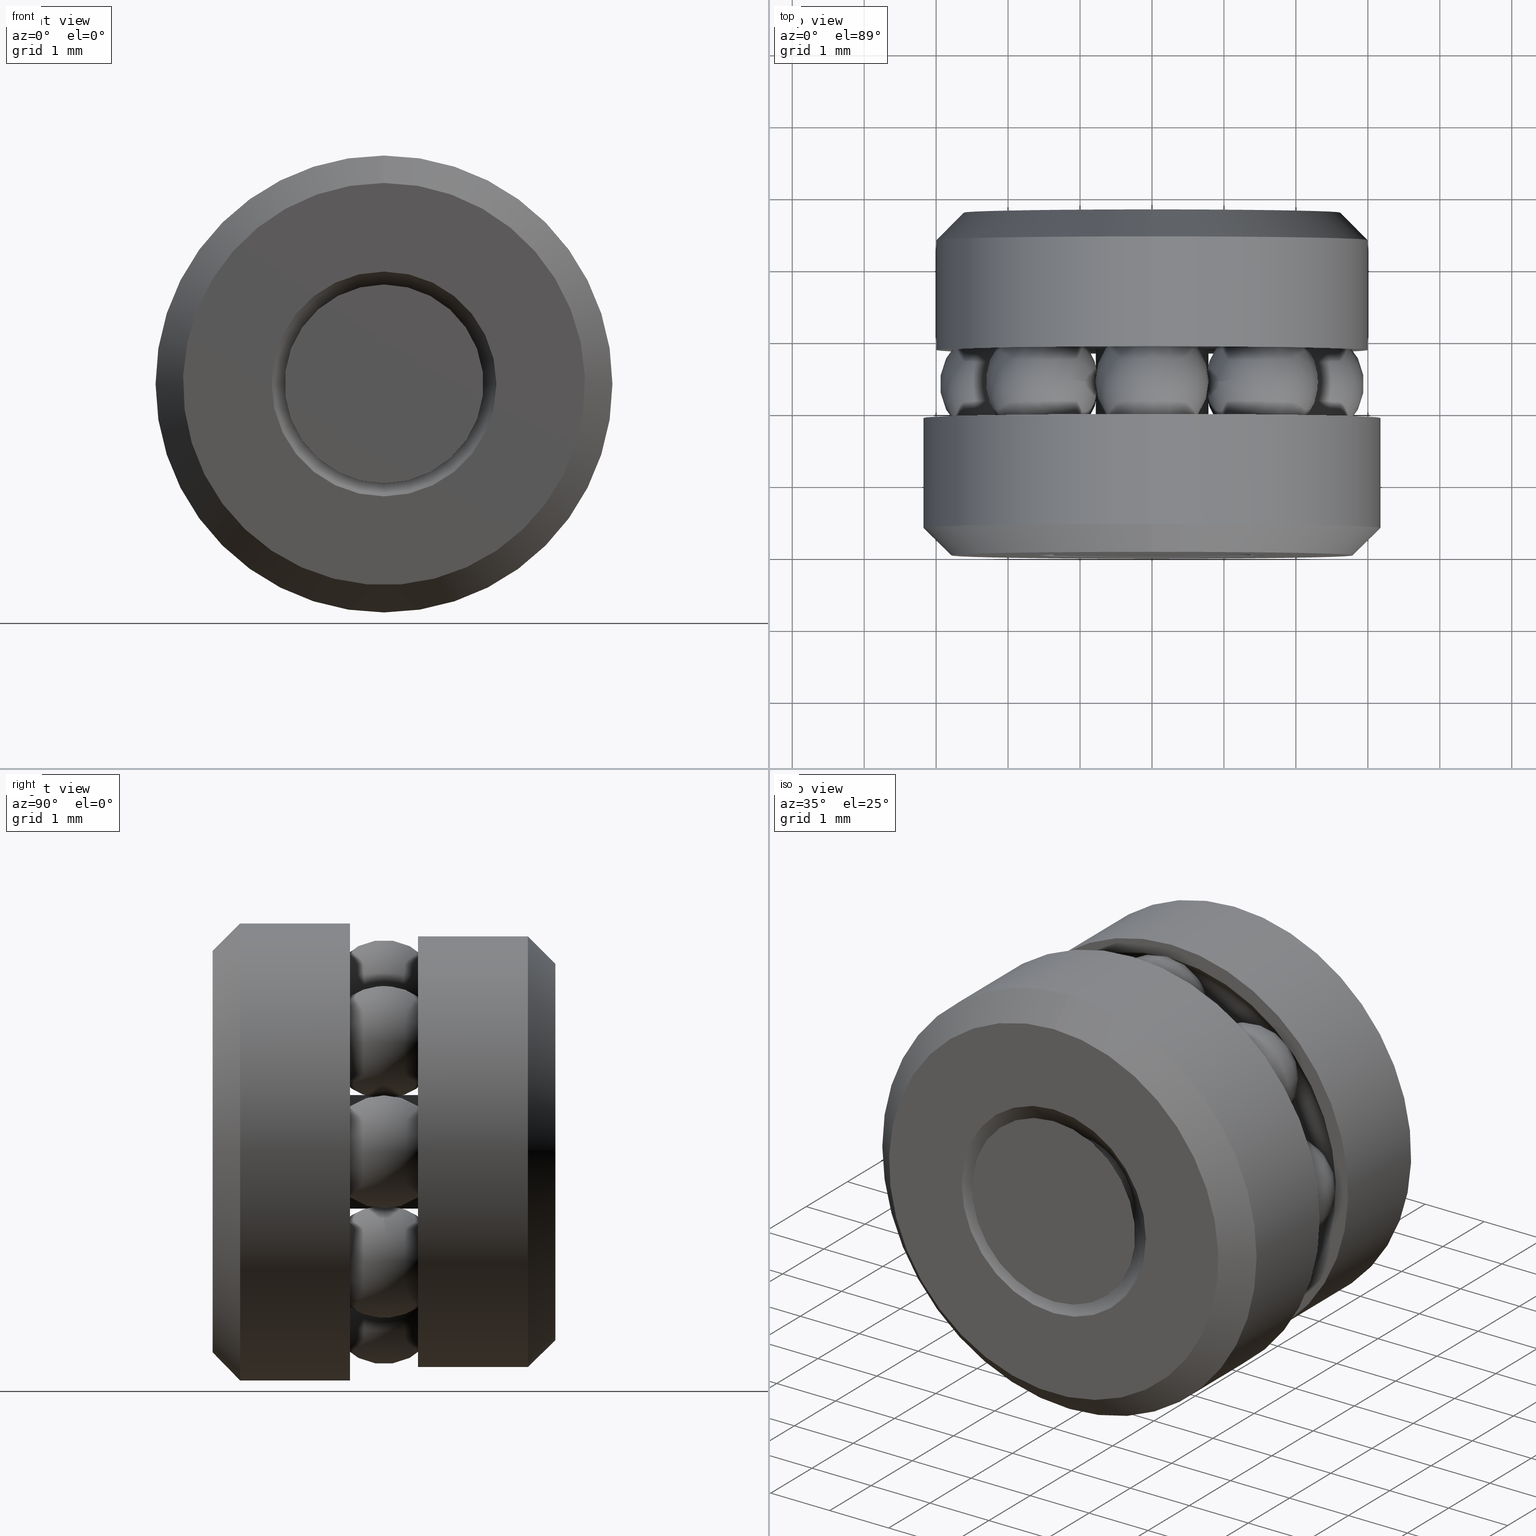
[diagram: canonical four-view strip — front | top / right | iso, engineering-drawing reading convention]
A machine part, canonical four-view strip (front | top / right | iso — engineering-drawing reading convention). The complete STEP part file that produces these views, byte-faithful:
ISO-10303-21;
HEADER;
FILE_DESCRIPTION (( 'STEP AP203' ),
    '1' );
FILE_NAME ('T-114RG_T-114RG-0004.step',
    '2016-02-04T15:34:06',
    ( '' ),
    ( '' ),
    'SwSTEP 2.0',
    'SolidWorks 2016',
    '' );
FILE_SCHEMA (( 'CONFIG_CONTROL_DESIGN' ));
ENDSEC;

DATA;
#1 = CLOSED_SHELL ( 'NONE', ( #98, #182, #491, #46, #134 ) ) ;
#2 = CARTESIAN_POINT ( 'NONE',  ( 0.0000000000000000000, 0.07515000000000014700, 0.0000000000000000000 ) ) ;
#3 = DIRECTION ( 'NONE',  ( -0.0000000000000000000, 1.000000000000000000, -0.0000000000000000000 ) ) ;
#4 = CALENDAR_DATE ( 2016, 4, 2 ) ;
#5 = EDGE_LOOP ( 'NONE', ( #129 ) ) ;
#6 = VERTEX_POINT ( 'NONE', #232 ) ;
#7 = DIRECTION ( 'NONE',  ( 0.0000000000000000000, 0.0000000000000000000, 1.000000000000000000 ) ) ;
#8 = CARTESIAN_POINT ( 'NONE',  ( 0.0000000000000000000, 0.1640625000000001100, 0.0000000000000000000 ) ) ;
#9 = CIRCLE ( 'NONE', #142, 0.03600000000000003900 ) ;
#10 = CONICAL_SURFACE ( 'NONE', #473, 0.1250000000000000300, 0.7853981633974430600 ) ;
#11 = VERTEX_POINT ( 'NONE', #17 ) ;
#12 = CALENDAR_DATE ( 2016, 4, 2 ) ;
#13 = CARTESIAN_POINT ( 'NONE',  ( -0.1179999999999999400, 0.1123499999999999600, 0.0000000000000000000 ) ) ;
#14 = EDGE_CURVE ( 'NONE', #547, #547, #408, .T. ) ;
#15 = AXIS2_PLACEMENT_3D ( 'NONE', #58, #63, #155 ) ;
#16 = CC_DESIGN_PERSON_AND_ORGANIZATION_ASSIGNMENT ( #81, #104, ( #516 ) ) ;
#17 = CARTESIAN_POINT ( 'NONE',  ( 0.0000000000000000000, 0.07515000000000014700, 0.1097999999999998800 ) ) ;
#18 = DIRECTION ( 'NONE',  ( 0.0000000000000000000, 0.0000000000000000000, 1.000000000000000000 ) ) ;
#19 = FACE_OUTER_BOUND ( 'NONE', #91, .T. ) ;
#20 = DIRECTION ( 'NONE',  ( -0.0000000000000000000, 1.000000000000000000, -0.0000000000000000000 ) ) ;
#21 = FACE_BOUND ( 'NONE', #346, .T. ) ;
#22 = AXIS2_PLACEMENT_3D ( 'NONE', #105, #219, #486 ) ;
#23 = CYLINDRICAL_SURFACE ( 'NONE', #316, 0.1250000000000000300 ) ;
#24 = ORIENTED_EDGE ( 'NONE', *, *, #493, .F. ) ;
#25 = UNCERTAINTY_MEASURE_WITH_UNIT (LENGTH_MEASURE( 1.000000000000000100E-005 ), #366, 'distance_accuracy_value', 'NONE');
#26 = EDGE_LOOP ( 'NONE', ( #330 ) ) ;
#27 = FACE_OUTER_BOUND ( 'NONE', #410, .T. ) ;
#28 = CLOSED_SHELL ( 'NONE', ( #554 ) ) ;
#29 = DIRECTION ( 'NONE',  ( 0.0000000000000000000, 0.0000000000000000000, 1.000000000000000000 ) ) ;
#30 = CIRCLE ( 'NONE', #459, 0.1180000000000000800 ) ;
#31 = VERTEX_POINT ( 'NONE', #201 ) ;
#32 = FACE_OUTER_BOUND ( 'NONE', #60, .T. ) ;
#33 = ADVANCED_FACE ( 'NONE', ( #89, #452 ), #249, .F. ) ;
#34 = DIRECTION ( 'NONE',  ( 0.0000000000000000000, 0.0000000000000000000, 1.000000000000000000 ) ) ;
#35 = PERSON_AND_ORGANIZATION_ROLE ( 'classification_officer' ) ;
#36 = PERSON_AND_ORGANIZATION ( #208, #424 ) ;
#37 = ORIENTED_EDGE ( 'NONE', *, *, #147, .F. ) ;
#38 = ORIENTED_EDGE ( 'NONE', *, *, #404, .F. ) ;
#39 = DIRECTION ( 'NONE',  ( -0.0000000000000000000, 1.000000000000000000, 0.0000000000000000000 ) ) ;
#40 = EDGE_LOOP ( 'NONE', ( #164 ) ) ;
#41 = ORIENTED_EDGE ( 'NONE', *, *, #226, .T. ) ;
#42 = FACE_OUTER_BOUND ( 'NONE', #502, .T. ) ;
#43 = DIRECTION ( 'NONE',  ( 0.0000000000000000000, -1.000000000000000000, 0.0000000000000000000 ) ) ;
#44 = ADVANCED_FACE ( 'NONE', ( #32, #413 ), #188, .F. ) ;
#45 = DIRECTION ( 'NONE',  ( 0.0000000000000000000, 0.0000000000000000000, 1.000000000000000000 ) ) ;
#46 = ADVANCED_FACE ( 'NONE', ( #247, #19 ), #558, .T. ) ;
#47 = DIRECTION ( 'NONE',  ( 1.000000000000000000, 0.0000000000000000000, 0.0000000000000000000 ) ) ;
#48 = CIRCLE ( 'NONE', #215, 0.1179999999999999400 ) ;
#49 = EDGE_LOOP ( 'NONE', ( #427 ) ) ;
#50 = AXIS2_PLACEMENT_3D ( 'NONE', #350, #524, #315 ) ;
#51 = FACE_OUTER_BOUND ( 'NONE', #519, .T. ) ;
#52 = ADVANCED_FACE ( 'NONE', ( ), #122, .T. ) ;
#53 = DESIGN_CONTEXT ( 'detailed design', #178, 'design' ) ;
#54 = DIRECTION ( 'NONE',  ( 0.7071067811865389100, 0.0000000000000000000, -0.7071067811865561200 ) ) ;
#55 = DIRECTION ( 'NONE',  ( 0.0000000000000000000, 0.0000000000000000000, 1.000000000000000000 ) ) ;
#56 = EDGE_LOOP ( 'NONE', ( #190 ) ) ;
#57 = DIRECTION ( 'NONE',  ( 0.0000000000000000000, 0.0000000000000000000, 1.000000000000000000 ) ) ;
#58 = CARTESIAN_POINT ( 'NONE',  ( 0.0000000000000000000, 0.02343750000000004900, 0.0000000000000000000 ) ) ;
#59 = EDGE_LOOP ( 'NONE', ( #337 ) ) ;
#60 = EDGE_LOOP ( 'NONE', ( #119 ) ) ;
#61 = FACE_OUTER_BOUND ( 'NONE', #421, .T. ) ;
#62 = DIRECTION ( 'NONE',  ( 1.000000000000000000, 0.0000000000000000000, 0.0000000000000000000 ) ) ;
#63 = DIRECTION ( 'NONE',  ( 0.0000000000000000000, -1.000000000000000000, 0.0000000000000000000 ) ) ;
#64 = EDGE_CURVE ( 'NONE', #69, #69, #544, .T. ) ;
#65 =( NAMED_UNIT ( * ) PLANE_ANGLE_UNIT ( ) SI_UNIT ( $, .RADIAN. ) );
#66 = DIRECTION ( 'NONE',  ( -0.0000000000000000000, 1.000000000000000000, -0.0000000000000000000 ) ) ;
#67 = DIRECTION ( 'NONE',  ( -0.0000000000000000000, 1.000000000000000000, -0.0000000000000000000 ) ) ;
#68 = VERTEX_POINT ( 'NONE', #125 ) ;
#69 = VERTEX_POINT ( 'NONE', #243 ) ;
#70 = PERSON_AND_ORGANIZATION ( #208, #424 ) ;
#71 = MANIFOLD_SOLID_BREP ( 'Revolve2[2]', #549 ) ;
#72 = EDGE_CURVE ( 'NONE', #31, #31, #267, .T. ) ;
#73 = EDGE_LOOP ( 'NONE', ( #477 ) ) ;
#74 = AXIS2_PLACEMENT_3D ( 'NONE', #76, #377, #333 ) ;
#75 = FACE_OUTER_BOUND ( 'NONE', #275, .T. ) ;
#76 = CARTESIAN_POINT ( 'NONE',  ( 0.06010407640085585500, 0.09375000000000005600, -0.06010407640085691000 ) ) ;
#77 = APPROVAL ( #291, 'UNSPECIFIED' ) ;
#78 = DIRECTION ( 'NONE',  ( 0.0000000000000000000, 0.0000000000000000000, 1.000000000000000000 ) ) ;
#79 = ORIENTED_EDGE ( 'NONE', *, *, #64, .T. ) ;
#80 = DIRECTION ( 'NONE',  ( -0.7071067811865436900, 0.0000000000000000000, 0.7071067811865511300 ) ) ;
#81 = PERSON_AND_ORGANIZATION ( #208, #424 ) ;
#82 = PERSON_AND_ORGANIZATION_ROLE ( 'design_supplier' ) ;
#83 = ORIENTED_EDGE ( 'NONE', *, *, #210, .T. ) ;
#84 = CARTESIAN_POINT ( 'NONE',  ( 0.0000000000000000000, 0.07515000000000014700, 0.03600000000000003900 ) ) ;
#85 = AXIS2_PLACEMENT_3D ( 'NONE', #529, #39, #299 ) ;
#86 = APPLICATION_PROTOCOL_DEFINITION ( 'international standard', 'config_control_design', 1994, #373 ) ;
#87 = MANIFOLD_SOLID_BREP ( 'BALLS[2]', #340 ) ;
#88 = ORIENTED_EDGE ( 'NONE', *, *, #259, .F. ) ;
#89 = FACE_OUTER_BOUND ( 'NONE', #162, .T. ) ;
#90 = DIRECTION ( 'NONE',  ( 0.0000000000000000000, 0.0000000000000000000, 1.000000000000000000 ) ) ;
#91 = EDGE_LOOP ( 'NONE', ( #37 ) ) ;
#92 = DIRECTION ( 'NONE',  ( 0.0000000000000000000, 0.0000000000000000000, 1.000000000000000000 ) ) ;
#93 = AXIS2_PLACEMENT_3D ( 'NONE', #380, #80, #112 ) ;
#94 = CARTESIAN_POINT ( 'NONE',  ( 0.0000000000000000000, -2.561107494060246600E-016, 0.0000000000000000000 ) ) ;
#95 = FACE_BOUND ( 'NONE', #376, .T. ) ;
#96 = CLOSED_SHELL ( 'NONE', ( #52 ) ) ;
#97 = ORIENTED_EDGE ( 'NONE', *, *, #444, .T. ) ;
#98 = ADVANCED_FACE ( 'NONE', ( #301 ), #320, .T. ) ;
#99 = CARTESIAN_POINT ( 'NONE',  ( 0.0000000000000000000, 0.02343750000000004900, 0.0000000000000000000 ) ) ;
#100 = DIRECTION ( 'NONE',  ( -0.0000000000000000000, 1.000000000000000000, -0.0000000000000000000 ) ) ;
#101 = ADVANCED_FACE ( 'NONE', ( #205, #192 ), #241, .T. ) ;
#102 = DIRECTION ( 'NONE',  ( 0.0000000000000000000, 0.0000000000000000000, 1.000000000000000000 ) ) ;
#103 = CARTESIAN_POINT ( 'NONE',  ( 0.0000000000000000000, 0.07515000000000014700, 0.0000000000000000000 ) ) ;
#104 = PERSON_AND_ORGANIZATION_ROLE ( 'creator' ) ;
#105 = CARTESIAN_POINT ( 'NONE',  ( -0.06019999999999967700, 0.07515000000000014700, 0.0000000000000000000 ) ) ;
#106 = AXIS2_PLACEMENT_3D ( 'NONE', #196, #453, #358 ) ;
#107 =( NAMED_UNIT ( * ) SI_UNIT ( $, .STERADIAN. ) SOLID_ANGLE_UNIT ( ) );
#108 = DIRECTION ( 'NONE',  ( 0.0000000000000000000, 0.0000000000000000000, 1.000000000000000000 ) ) ;
#109 = DIRECTION ( 'NONE',  ( -0.0000000000000000000, 1.000000000000000000, -0.0000000000000000000 ) ) ;
#110 = CLOSED_SHELL ( 'NONE', ( #126 ) ) ;
#111 = FACE_OUTER_BOUND ( 'NONE', #197, .T. ) ;
#112 = DIRECTION ( 'NONE',  ( -0.7071067811865513500, 0.0000000000000000000, -0.7071067811865439100 ) ) ;
#113 = FACE_OUTER_BOUND ( 'NONE', #49, .T. ) ;
#114 = MANIFOLD_SOLID_BREP ( 'BALLS[3]', #525 ) ;
#115 = FACE_BOUND ( 'NONE', #489, .T. ) ;
#116 = AXIS2_PLACEMENT_3D ( 'NONE', #94, #360, #55 ) ;
#117 = APPROVAL_PERSON_ORGANIZATION ( #228, #77, #559 ) ;
#118 = ORIENTED_EDGE ( 'NONE', *, *, #64, .F. ) ;
#119 = ORIENTED_EDGE ( 'NONE', *, *, #259, .T. ) ;
#120 = CARTESIAN_POINT ( 'NONE',  ( 0.0000000000000000000, 0.1123499999999999600, 0.0000000000000000000 ) ) ;
#121 = ORIENTED_EDGE ( 'NONE', *, *, #550, .F. ) ;
#122 = SPHERICAL_SURFACE ( 'NONE', #185, 0.03100000000000002400 ) ;
#123 = AXIS2_PLACEMENT_3D ( 'NONE', #500, #246, #411 ) ;
#124 = ADVANCED_FACE ( 'NONE', ( #347, #318 ), #189, .T. ) ;
#125 = CARTESIAN_POINT ( 'NONE',  ( 0.0000000000000000000, 0.1123499999999999600, 0.1097999999999998800 ) ) ;
#126 = ADVANCED_FACE ( 'NONE', ( ), #282, .T. ) ;
#127 = CARTESIAN_POINT ( 'NONE',  ( 0.0000000000000000000, -2.561107494060246600E-016, 0.1100000000000000400 ) ) ;
#128 = MANIFOLD_SOLID_BREP ( 'BALLS[4]', #28 ) ;
#129 = ORIENTED_EDGE ( 'NONE', *, *, #323, .F. ) ;
#130 = APPROVAL_STATUS ( 'not_yet_approved' ) ;
#131 = FACE_OUTER_BOUND ( 'NONE', #187, .T. ) ;
#132 = DATE_AND_TIME ( #248, #212 ) ;
#133 = ORIENTED_EDGE ( 'NONE', *, *, #493, .T. ) ;
#134 = ADVANCED_FACE ( 'NONE', ( #51, #115 ), #138, .T. ) ;
#135 = PLANE ( 'NONE',  #22 ) ;
#136 = AXIS2_PLACEMENT_3D ( 'NONE', #448, #278, #497 ) ;
#137 = EDGE_LOOP ( 'NONE', ( #283 ) ) ;
#138 = CONICAL_SURFACE ( 'NONE', #15, 0.03099999999999998900, 0.7853981633974417300 ) ;
#139 = ORIENTED_EDGE ( 'NONE', *, *, #323, .T. ) ;
#140 = DIRECTION ( 'NONE',  ( -0.0000000000000000000, 1.000000000000000000, -0.0000000000000000000 ) ) ;
#141 = CARTESIAN_POINT ( 'NONE',  ( 0.08499999999999977000, 0.09375000000000005600, -5.935518276033311300E-016 ) ) ;
#142 = AXIS2_PLACEMENT_3D ( 'NONE', #2, #20, #304 ) ;
#143 = CIRCLE ( 'NONE', #552, 0.03600000000000003900 ) ;
#144 = CARTESIAN_POINT ( 'NONE',  ( 0.0000000000000000000, 0.09375000000000005600, 0.0000000000000000000 ) ) ;
#145 = DATE_AND_TIME ( #12, #262 ) ;
#146 = CIRCLE ( 'NONE', #437, 0.03600000000000000400 ) ;
#147 = EDGE_CURVE ( 'NONE', #6, #6, #445, .T. ) ;
#148 = EDGE_LOOP ( 'NONE', ( #531 ) ) ;
#149 = DIRECTION ( 'NONE',  ( -0.0000000000000000000, 1.000000000000000000, -0.0000000000000000000 ) ) ;
#150 = DIRECTION ( 'NONE',  ( 0.0000000000000000000, -1.000000000000000000, 0.0000000000000000000 ) ) ;
#151 = AXIS2_PLACEMENT_3D ( 'NONE', #103, #561, #261 ) ;
#152 = CARTESIAN_POINT ( 'NONE',  ( 0.0000000000000000000, 0.1619914321881346400, 0.0000000000000000000 ) ) ;
#153 = ORIENTED_EDGE ( 'NONE', *, *, #362, .F. ) ;
#154 = APPROVAL_ROLE ( '' ) ;
#155 = DIRECTION ( 'NONE',  ( 0.0000000000000000000, 0.0000000000000000000, -1.000000000000000000 ) ) ;
#156 = VERTEX_POINT ( 'NONE', #428 ) ;
#157 = VERTEX_POINT ( 'NONE', #384 ) ;
#158 = CARTESIAN_POINT ( 'NONE',  ( -0.08499999999999977000, 0.09375000000000005600, 0.0000000000000000000 ) ) ;
#159 = EDGE_LOOP ( 'NONE', ( #325 ) ) ;
#160 = AXIS2_PLACEMENT_3D ( 'NONE', #423, #379, #78 ) ;
#161 = CARTESIAN_POINT ( 'NONE',  ( 0.0000000000000000000, 0.1875000000000001100, 0.0000000000000000000 ) ) ;
#162 = EDGE_LOOP ( 'NONE', ( #281 ) ) ;
#163 = PRODUCT ( 'T-114RG_T-114RG-0004', 'T-114RG_T-114RG-0004', '', ( #343 ) ) ;
#164 = ORIENTED_EDGE ( 'NONE', *, *, #286, .F. ) ;
#165 = CONICAL_SURFACE ( 'NONE', #292, 0.05443749999999976400, 0.7853981633974425100 ) ;
#166 = CYLINDRICAL_SURFACE ( 'NONE', #535, 0.03600000000000002500 ) ;
#167 = CLOSED_SHELL ( 'NONE', ( #390 ) ) ;
#168 = DIRECTION ( 'NONE',  ( -0.0000000000000000000, 1.000000000000000000, -0.0000000000000000000 ) ) ;
#169 = AXIS2_PLACEMENT_3D ( 'NONE', #8, #322, #18 ) ;
#170 = FACE_OUTER_BOUND ( 'NONE', #217, .T. ) ;
#171 = CARTESIAN_POINT ( 'NONE',  ( -0.05443749999999976400, -1.707404996040164500E-017, 0.0000000000000000000 ) ) ;
#172 = CARTESIAN_POINT ( 'NONE',  ( 0.0000000000000000000, 0.1123499999999999600, 0.03600000000000003900 ) ) ;
#173 = VERTEX_POINT ( 'NONE', #474 ) ;
#174 = MANIFOLD_SOLID_BREP ( 'Revolve2[1]', #1 ) ;
#175 = PERSON_AND_ORGANIZATION ( #208, #424 ) ;
#176 = CARTESIAN_POINT ( 'NONE',  ( 0.0000000000000000000, 0.1874999999999995800, 0.1030000000000002000 ) ) ;
#177 = CIRCLE ( 'NONE', #494, 0.03600000000000000400 ) ;
#178 = APPLICATION_CONTEXT ( 'configuration controlled 3d designs of mechanical parts and assemblies' ) ;
#179 = AXIS2_PLACEMENT_3D ( 'NONE', #237, #150, #403 ) ;
#180 = DIRECTION ( 'NONE',  ( -0.0000000000000000000, 1.000000000000000000, -0.0000000000000000000 ) ) ;
#181 = COORDINATED_UNIVERSAL_TIME_OFFSET ( 5, 0, .BEHIND. ) ;
#182 = ADVANCED_FACE ( 'NONE', ( #111 ), #311, .T. ) ;
#183 = CARTESIAN_POINT ( 'NONE',  ( 0.0000000000000000000, 0.0000000000000000000, 0.0000000000000000000 ) ) ;
#184 = CARTESIAN_POINT ( 'NONE',  ( 0.0000000000000000000, 0.01499999999999989400, 0.0000000000000000000 ) ) ;
#185 = AXIS2_PLACEMENT_3D ( 'NONE', #447, #543, #279 ) ;
#186 = DIRECTION ( 'NONE',  ( -0.0000000000000000000, 1.000000000000000000, -0.0000000000000000000 ) ) ;
#187 = EDGE_LOOP ( 'NONE', ( #331 ) ) ;
#188 = CONICAL_SURFACE ( 'NONE', #542, 0.03600000000000000400, 0.7853981633974409500 ) ;
#189 = PLANE ( 'NONE',  #297 ) ;
#190 = ORIENTED_EDGE ( 'NONE', *, *, #362, .T. ) ;
#191 = DIRECTION ( 'NONE',  ( 0.0000000000000000000, 0.0000000000000000000, -1.000000000000000000 ) ) ;
#192 = FACE_BOUND ( 'NONE', #223, .T. ) ;
#193 = DIRECTION ( 'NONE',  ( 0.0000000000000000000, 0.0000000000000000000, 1.000000000000000000 ) ) ;
#194 = ADVANCED_FACE ( 'NONE', ( #319, #327 ), #23, .T. ) ;
#195 = CARTESIAN_POINT ( 'NONE',  ( 0.0000000000000000000, 0.1619914321881346400, 0.0000000000000000000 ) ) ;
#196 = CARTESIAN_POINT ( 'NONE',  ( 0.0000000000000000000, 0.07515000000000014700, 0.0000000000000000000 ) ) ;
#197 = EDGE_LOOP ( 'NONE', ( #79 ) ) ;
#198 = DATE_TIME_ROLE ( 'classification_date' ) ;
#199 = DIRECTION ( 'NONE',  ( 0.0000000000000000000, 0.0000000000000000000, 1.000000000000000000 ) ) ;
#200 = AXIS2_PLACEMENT_3D ( 'NONE', #517, #265, #280 ) ;
#201 = CARTESIAN_POINT ( 'NONE',  ( 0.0000000000000000000, 0.01499999999999989400, 0.1250000000000000300 ) ) ;
#202 = ORIENTED_EDGE ( 'NONE', *, *, #444, .F. ) ;
#203 = DIRECTION ( 'NONE',  ( 0.0000000000000000000, 0.0000000000000000000, 1.000000000000000000 ) ) ;
#204 = FACE_OUTER_BOUND ( 'NONE', #475, .T. ) ;
#205 = FACE_OUTER_BOUND ( 'NONE', #266, .T. ) ;
#206 = CIRCLE ( 'NONE', #405, 0.1097999999999998800 ) ;
#207 = EDGE_CURVE ( 'NONE', #11, #11, #416, .T. ) ;
#208 = PERSON ( 'UNSPECIFIED', 'UNSPECIFIED', 'UNSPECIFIED', ('UNSPECIFIED'), ('UNSPECIFIED'), ('UNSPECIFIED') ) ;
#209 = APPROVAL ( #130, 'UNSPECIFIED' ) ;
#210 = EDGE_CURVE ( 'NONE', #294, #294, #393, .T. ) ;
#211 = PERSON_AND_ORGANIZATION ( #208, #424 ) ;
#212 = LOCAL_TIME ( 10, 34, 6.000000000000000000, #513 ) ;
#213 = DIRECTION ( 'NONE',  ( -0.0000000000000000000, 1.000000000000000000, -0.0000000000000000000 ) ) ;
#214 = ADVANCED_FACE ( 'NONE', ( #21, #463 ), #242, .T. ) ;
#215 = AXIS2_PLACEMENT_3D ( 'NONE', #326, #67, #224 ) ;
#216 = SPHERICAL_SURFACE ( 'NONE', #93, 0.03100000000000002400 ) ;
#217 = EDGE_LOOP ( 'NONE', ( #41 ) ) ;
#218 = CARTESIAN_POINT ( 'NONE',  ( 0.0000000000000000000, 0.02550856781186526500, 0.03600000000000000400 ) ) ;
#219 = DIRECTION ( 'NONE',  ( -0.0000000000000000000, 1.000000000000000000, 0.0000000000000000000 ) ) ;
#220 = ADVANCED_FACE ( 'NONE', ( ), #498, .T. ) ;
#221 = CARTESIAN_POINT ( 'NONE',  ( 0.0000000000000000000, 0.02343750000000004900, 0.03099999999999998900 ) ) ;
#222 = FACE_OUTER_BOUND ( 'NONE', #159, .T. ) ;
#223 = EDGE_LOOP ( 'NONE', ( #88 ) ) ;
#224 = DIRECTION ( 'NONE',  ( 0.0000000000000000000, 0.0000000000000000000, 1.000000000000000000 ) ) ;
#225 = CIRCLE ( 'NONE', #151, 0.06019999999999967700 ) ;
#226 = EDGE_CURVE ( 'NONE', #156, #156, #146, .T. ) ;
#227 = DIRECTION ( 'NONE',  ( -0.0000000000000000000, 1.000000000000000000, -0.0000000000000000000 ) ) ;
#228 = PERSON_AND_ORGANIZATION ( #208, #424 ) ;
#229 = CARTESIAN_POINT ( 'NONE',  ( 0.0000000000000000000, 0.0000000000000000000, 0.0000000000000000000 ) ) ;
#230 = ADVANCED_FACE ( 'NONE', ( ), #235, .T. ) ;
#231 = AXIS2_PLACEMENT_3D ( 'NONE', #161, #541, #57 ) ;
#232 = CARTESIAN_POINT ( 'NONE',  ( 0.0000000000000000000, 0.1640625000000001100, 0.03100000000000002400 ) ) ;
#233 = MANIFOLD_SOLID_BREP ( 'BALLS[5]', #364 ) ;
#234 = CARTESIAN_POINT ( 'NONE',  ( 0.0000000000000000000, -3.414809992080329000E-017, 0.0000000000000000000 ) ) ;
#235 = SPHERICAL_SURFACE ( 'NONE', #562, 0.03100000000000002400 ) ;
#236 = EDGE_LOOP ( 'NONE', ( #38 ) ) ;
#237 = CARTESIAN_POINT ( 'NONE',  ( -0.06150856781186498500, -1.280553747030123300E-016, 0.0000000000000000000 ) ) ;
#238 = ORIENTED_EDGE ( 'NONE', *, *, #404, .T. ) ;
#239 = DIRECTION ( 'NONE',  ( 0.7071067811865561200, 0.0000000000000000000, 0.7071067811865389100 ) ) ;
#240 = AXIS2_PLACEMENT_3D ( 'NONE', #399, #555, #108 ) ;
#241 = PLANE ( 'NONE',  #240 ) ;
#242 = PLANE ( 'NONE',  #179 ) ;
#243 = CARTESIAN_POINT ( 'NONE',  ( 0.0000000000000000000, 0.1875000000000001100, 0.05443749999999976400 ) ) ;
#244 = EDGE_CURVE ( 'NONE', #68, #68, #206, .T. ) ;
#245 = APPROVAL_DATE_TIME ( #309, #496 ) ;
#246 = DIRECTION ( 'NONE',  ( -0.0000000000000000000, 1.000000000000000000, -0.0000000000000000000 ) ) ;
#247 = FACE_OUTER_BOUND ( 'NONE', #268, .T. ) ;
#248 = CALENDAR_DATE ( 2016, 4, 2 ) ;
#249 = TOROIDAL_SURFACE ( 'NONE', #412, 0.08499999999999977000, 0.03100000000000002400 ) ;
#250 = CARTESIAN_POINT ( 'NONE',  ( 0.0000000000000000000, 0.0000000000000000000, 0.0000000000000000000 ) ) ;
#251 = EDGE_LOOP ( 'NONE', ( #396 ) ) ;
#252 = AXIS2_PLACEMENT_3D ( 'NONE', #510, #312, #308 ) ;
#253 = AXIS2_PLACEMENT_3D ( 'NONE', #305, #227, #526 ) ;
#254 = FACE_BOUND ( 'NONE', #381, .T. ) ;
#255 = FACE_OUTER_BOUND ( 'NONE', #488, .T. ) ;
#256 = ADVANCED_FACE ( 'NONE', ( ), #386, .T. ) ;
#257 = CIRCLE ( 'NONE', #492, 0.03099999999999998900 ) ;
#258 = PERSON_AND_ORGANIZATION_ROLE ( 'creator' ) ;
#259 = EDGE_CURVE ( 'NONE', #435, #435, #467, .T. ) ;
#260 = CONICAL_SURFACE ( 'NONE', #518, 0.06150856781186498500, 0.7853981633974428400 ) ;
#261 = DIRECTION ( 'NONE',  ( 0.0000000000000000000, 0.0000000000000000000, 1.000000000000000000 ) ) ;
#262 = LOCAL_TIME ( 10, 34, 6.000000000000000000, #181 ) ;
#263 = CARTESIAN_POINT ( 'NONE',  ( 0.0000000000000000000, 0.0000000000000000000, 0.0000000000000000000 ) ) ;
#264 = EDGE_CURVE ( 'NONE', #546, #546, #177, .T. ) ;
#265 = DIRECTION ( 'NONE',  ( -0.7071067811865486800, 0.0000000000000000000, -0.7071067811865463500 ) ) ;
#266 = EDGE_LOOP ( 'NONE', ( #425 ) ) ;
#267 = CIRCLE ( 'NONE', #160, 0.1250000000000000300 ) ;
#268 = EDGE_LOOP ( 'NONE', ( #514 ) ) ;
#269 = CARTESIAN_POINT ( 'NONE',  ( 0.0000000000000000000, 0.1123499999999999600, 0.0000000000000000000 ) ) ;
#270 = ADVANCED_FACE ( 'NONE', ( #324, #75 ), #260, .F. ) ;
#271 = AXIS2_PLACEMENT_3D ( 'NONE', #171, #336, #468 ) ;
#272 = COORDINATED_UNIVERSAL_TIME_OFFSET ( 5, 0, .BEHIND. ) ;
#273 = DATE_AND_TIME ( #4, #332 ) ;
#274 = DIRECTION ( 'NONE',  ( -0.0000000000000000000, 1.000000000000000000, -0.0000000000000000000 ) ) ;
#275 = EDGE_LOOP ( 'NONE', ( #24 ) ) ;
#276 = CARTESIAN_POINT ( 'NONE',  ( 0.0000000000000000000, 0.07515000000000014700, 0.1250000000000000300 ) ) ;
#277 = ORIENTED_EDGE ( 'NONE', *, *, #14, .T. ) ;
#278 = DIRECTION ( 'NONE',  ( -0.0000000000000000000, 1.000000000000000000, 0.0000000000000000000 ) ) ;
#279 = DIRECTION ( 'NONE',  ( 1.047444401652940200E-014, 0.0000000000000000000, 1.000000000000000000 ) ) ;
#280 = DIRECTION ( 'NONE',  ( 0.7071067811865463500, 0.0000000000000000000, -0.7071067811865486800 ) ) ;
#281 = ORIENTED_EDGE ( 'NONE', *, *, #207, .T. ) ;
#282 = SPHERICAL_SURFACE ( 'NONE', #503, 0.03100000000000002400 ) ;
#283 = ORIENTED_EDGE ( 'NONE', *, *, #434, .T. ) ;
#284 = AXIS2_PLACEMENT_3D ( 'NONE', #263, #476, #62 ) ;
#285 = ADVANCED_BREP_SHAPE_REPRESENTATION ( 'T-114RG_T-114RG-0004', ( #174, #71, #370, #490, #472, #87, #114, #128, #233, #389, #536, #284 ), #344 ) ;
#286 = EDGE_CURVE ( 'NONE', #507, #507, #30, .T. ) ;
#287 = CIRCLE ( 'NONE', #465, 0.1030000000000002000 ) ;
#288 = CLOSED_SHELL ( 'NONE', ( #230 ) ) ;
#289 = PRODUCT_DEFINITION_SHAPE ( 'NONE', 'NONE',  #516 ) ;
#290 = DIRECTION ( 'NONE',  ( -0.0000000000000000000, 1.000000000000000000, -0.0000000000000000000 ) ) ;
#291 = APPROVAL_STATUS ( 'not_yet_approved' ) ;
#292 = AXIS2_PLACEMENT_3D ( 'NONE', #409, #446, #354 ) ;
#293 = VERTEX_POINT ( 'NONE', #515 ) ;
#294 = VERTEX_POINT ( 'NONE', #276 ) ;
#295 = COORDINATED_UNIVERSAL_TIME_OFFSET ( 5, 0, .BEHIND. ) ;
#296 = CIRCLE ( 'NONE', #116, 0.1100000000000000400 ) ;
#297 = AXIS2_PLACEMENT_3D ( 'NONE', #402, #363, #534 ) ;
#298 = CC_DESIGN_PERSON_AND_ORGANIZATION_ASSIGNMENT ( #211, #258, ( #439 ) ) ;
#299 = DIRECTION ( 'NONE',  ( 0.0000000000000000000, 0.0000000000000000000, 1.000000000000000000 ) ) ;
#300 = CARTESIAN_POINT ( 'NONE',  ( 0.0000000000000000000, 0.1874999999999995800, 0.0000000000000000000 ) ) ;
#301 = FACE_OUTER_BOUND ( 'NONE', #59, .T. ) ;
#302 = DATE_AND_TIME ( #436, #455 ) ;
#303 = ORIENTED_EDGE ( 'NONE', *, *, #207, .F. ) ;
#304 = DIRECTION ( 'NONE',  ( 0.0000000000000000000, 0.0000000000000000000, 1.000000000000000000 ) ) ;
#305 = CARTESIAN_POINT ( 'NONE',  ( 0.0000000000000000000, 0.1875000000000001100, 0.0000000000000000000 ) ) ;
#306 = CALENDAR_DATE ( 2016, 4, 2 ) ;
#307 = CC_DESIGN_PERSON_AND_ORGANIZATION_ASSIGNMENT ( #522, #82, ( #439 ) ) ;
#308 = DIRECTION ( 'NONE',  ( 0.0000000000000000000, 0.0000000000000000000, 1.000000000000000000 ) ) ;
#309 = DATE_AND_TIME ( #306, #339 ) ;
#310 = ADVANCED_FACE ( 'NONE', ( #42, #131 ), #501, .F. ) ;
#311 = PLANE ( 'NONE',  #136 ) ;
#312 = DIRECTION ( 'NONE',  ( -0.0000000000000000000, 1.000000000000000000, -0.0000000000000000000 ) ) ;
#313 = CARTESIAN_POINT ( 'NONE',  ( 2.967759138016655700E-016, 0.09375000000000005600, 0.08499999999999977000 ) ) ;
#314 = AXIS2_PLACEMENT_3D ( 'NONE', #234, #213, #7 ) ;
#315 = DIRECTION ( 'NONE',  ( 0.0000000000000000000, 0.0000000000000000000, 1.000000000000000000 ) ) ;
#316 = AXIS2_PLACEMENT_3D ( 'NONE', #458, #321, #199 ) ;
#317 = FACE_OUTER_BOUND ( 'NONE', #385, .T. ) ;
#318 = FACE_OUTER_BOUND ( 'NONE', #148, .T. ) ;
#319 = FACE_OUTER_BOUND ( 'NONE', #454, .T. ) ;
#320 = PLANE ( 'NONE',  #271 ) ;
#321 = DIRECTION ( 'NONE',  ( -0.0000000000000000000, 1.000000000000000000, -0.0000000000000000000 ) ) ;
#322 = DIRECTION ( 'NONE',  ( -0.0000000000000000000, 1.000000000000000000, -0.0000000000000000000 ) ) ;
#323 = EDGE_CURVE ( 'NONE', #365, #365, #143, .T. ) ;
#324 = FACE_BOUND ( 'NONE', #26, .T. ) ;
#325 = ORIENTED_EDGE ( 'NONE', *, *, #244, .F. ) ;
#326 = CARTESIAN_POINT ( 'NONE',  ( 0.0000000000000000000, 0.1123499999999999600, 0.0000000000000000000 ) ) ;
#327 = FACE_OUTER_BOUND ( 'NONE', #251, .T. ) ;
#328 = CC_DESIGN_APPROVAL ( #209, ( #516 ) ) ;
#329 = COORDINATED_UNIVERSAL_TIME_OFFSET ( 5, 0, .BEHIND. ) ;
#330 = ORIENTED_EDGE ( 'NONE', *, *, #264, .T. ) ;
#331 = ORIENTED_EDGE ( 'NONE', *, *, #264, .F. ) ;
#332 = LOCAL_TIME ( 10, 34, 6.000000000000000000, #329 ) ;
#333 = DIRECTION ( 'NONE',  ( -0.7071067811865413600, 0.0000000000000000000, 0.7071067811865537900 ) ) ;
#334 = AXIS2_PLACEMENT_3D ( 'NONE', #229, #66, #203 ) ;
#335 = ADVANCED_FACE ( 'NONE', ( ), #216, .T. ) ;
#336 = DIRECTION ( 'NONE',  ( 0.0000000000000000000, -1.000000000000000000, 0.0000000000000000000 ) ) ;
#337 = ORIENTED_EDGE ( 'NONE', *, *, #14, .F. ) ;
#338 = DIRECTION ( 'NONE',  ( 0.0000000000000000000, 0.0000000000000000000, 1.000000000000000000 ) ) ;
#339 = LOCAL_TIME ( 10, 34, 6.000000000000000000, #272 ) ;
#340 = CLOSED_SHELL ( 'NONE', ( #220 ) ) ;
#341 = SECURITY_CLASSIFICATION ( '', '', #342 ) ;
#342 = SECURITY_CLASSIFICATION_LEVEL ( 'unclassified' ) ;
#343 = MECHANICAL_CONTEXT ( 'NONE', #373, 'mechanical' ) ;
#344 =( GEOMETRIC_REPRESENTATION_CONTEXT ( 3 ) GLOBAL_UNCERTAINTY_ASSIGNED_CONTEXT ( ( #25 ) ) GLOBAL_UNIT_ASSIGNED_CONTEXT ( ( #366, #65, #107 ) ) REPRESENTATION_CONTEXT ( 'NONE', 'WORKASPACE' ) );
#345 = FACE_OUTER_BOUND ( 'NONE', #40, .T. ) ;
#346 = EDGE_LOOP ( 'NONE', ( #133 ) ) ;
#347 = FACE_BOUND ( 'NONE', #520, .T. ) ;
#348 = CC_DESIGN_DATE_AND_TIME_ASSIGNMENT ( #302, #361, ( #516 ) ) ;
#349 = DIRECTION ( 'NONE',  ( 0.0000000000000000000, -1.000000000000000000, 0.0000000000000000000 ) ) ;
#350 = CARTESIAN_POINT ( 'NONE',  ( 0.0000000000000000000, 0.09375000000000005600, 0.0000000000000000000 ) ) ;
#351 = ORIENTED_EDGE ( 'NONE', *, *, #72, .T. ) ;
#352 = CARTESIAN_POINT ( 'NONE',  ( 0.0000000000000000000, 0.1123499999999999600, 0.0000000000000000000 ) ) ;
#353 = AXIS2_PLACEMENT_3D ( 'NONE', #300, #349, #418 ) ;
#354 = DIRECTION ( 'NONE',  ( 0.0000000000000000000, 0.0000000000000000000, 1.000000000000000000 ) ) ;
#355 = TOROIDAL_SURFACE ( 'NONE', #50, 0.08499999999999977000, 0.03100000000000002400 ) ;
#356 = FACE_OUTER_BOUND ( 'NONE', #137, .T. ) ;
#357 = DIRECTION ( 'NONE',  ( 0.0000000000000000000, 0.0000000000000000000, 1.000000000000000000 ) ) ;
#358 = DIRECTION ( 'NONE',  ( 0.0000000000000000000, 0.0000000000000000000, 1.000000000000000000 ) ) ;
#359 = DIRECTION ( 'NONE',  ( -3.491481338843133400E-015, 0.0000000000000000000, -1.000000000000000000 ) ) ;
#360 = DIRECTION ( 'NONE',  ( -0.0000000000000000000, 1.000000000000000000, -0.0000000000000000000 ) ) ;
#361 = DATE_TIME_ROLE ( 'creation_date' ) ;
#362 = EDGE_CURVE ( 'NONE', #173, #173, #48, .T. ) ;
#363 = DIRECTION ( 'NONE',  ( 0.0000000000000000000, -1.000000000000000000, 0.0000000000000000000 ) ) ;
#364 = CLOSED_SHELL ( 'NONE', ( #256 ) ) ;
#365 = VERTEX_POINT ( 'NONE', #172 ) ;
#366 =( CONVERSION_BASED_UNIT ( 'INCH', #530 ) LENGTH_UNIT ( ) NAMED_UNIT ( #470 ) );
#367 = CARTESIAN_POINT ( 'NONE',  ( 0.0000000000000000000, 0.1724999999999993200, 0.0000000000000000000 ) ) ;
#368 = DIRECTION ( 'NONE',  ( 0.0000000000000000000, 0.0000000000000000000, 1.000000000000000000 ) ) ;
#369 = CC_DESIGN_PERSON_AND_ORGANIZATION_ASSIGNMENT ( #479, #35, ( #341 ) ) ;
#370 = MANIFOLD_SOLID_BREP ( 'Revolve2[3]', #397 ) ;
#371 = ORIENTED_EDGE ( 'NONE', *, *, #147, .T. ) ;
#372 = VERTEX_POINT ( 'NONE', #176 ) ;
#373 = APPLICATION_CONTEXT ( 'configuration controlled 3d designs of mechanical parts and assemblies' ) ;
#374 = EDGE_CURVE ( 'NONE', #372, #372, #287, .T. ) ;
#375 = AXIS2_PLACEMENT_3D ( 'NONE', #313, #506, #359 ) ;
#376 = EDGE_LOOP ( 'NONE', ( #202 ) ) ;
#377 = DIRECTION ( 'NONE',  ( 0.7071067811865537900, -0.0000000000000000000, 0.7071067811865412400 ) ) ;
#378 = APPROVAL_DATE_TIME ( #273, #77 ) ;
#379 = DIRECTION ( 'NONE',  ( -0.0000000000000000000, 1.000000000000000000, -0.0000000000000000000 ) ) ;
#380 = CARTESIAN_POINT ( 'NONE',  ( 0.06010407640085669400, 0.09375000000000005600, 0.06010407640085606300 ) ) ;
#381 = EDGE_LOOP ( 'NONE', ( #238 ) ) ;
#382 = CARTESIAN_POINT ( 'NONE',  ( 0.0000000000000000000, 0.1875000000000001100, 0.06150856781186511000 ) ) ;
#383 = AXIS2_PLACEMENT_3D ( 'NONE', #141, #401, #450 ) ;
#384 = CARTESIAN_POINT ( 'NONE',  ( 0.0000000000000000000, 0.07515000000000014700, 0.06019999999999967700 ) ) ;
#385 = EDGE_LOOP ( 'NONE', ( #464 ) ) ;
#386 = SPHERICAL_SURFACE ( 'NONE', #74, 0.03100000000000002400 ) ;
#387 = CIRCLE ( 'NONE', #462, 0.06150856781186498500 ) ;
#388 = PERSON_AND_ORGANIZATION_ROLE ( 'design_owner' ) ;
#389 = MANIFOLD_SOLID_BREP ( 'BALLS[6]', #96 ) ;
#390 = ADVANCED_FACE ( 'NONE', ( ), #560, .T. ) ;
#391 = PLANE ( 'NONE',  #85 ) ;
#392 = EDGE_LOOP ( 'NONE', ( #551 ) ) ;
#393 = CIRCLE ( 'NONE', #123, 0.1250000000000000300 ) ;
#394 = DIRECTION ( 'NONE',  ( 0.0000000000000000000, -1.000000000000000000, 0.0000000000000000000 ) ) ;
#395 = EDGE_CURVE ( 'NONE', #438, #438, #429, .T. ) ;
#396 = ORIENTED_EDGE ( 'NONE', *, *, #210, .F. ) ;
#397 = CLOSED_SHELL ( 'NONE', ( #194, #532, #214, #270, #310, #483, #33, #509 ) ) ;
#398 = CC_DESIGN_APPROVAL ( #77, ( #439 ) ) ;
#399 = CARTESIAN_POINT ( 'NONE',  ( -0.06150856781186511000, 0.1874999999999998300, 0.0000000000000000000 ) ) ;
#400 = APPROVAL_DATE_TIME ( #132, #209 ) ;
#401 = DIRECTION ( 'NONE',  ( 6.982962677686266700E-015, -0.0000000000000000000, 1.000000000000000000 ) ) ;
#402 = CARTESIAN_POINT ( 'NONE',  ( -0.06019999999999967700, 0.1123499999999999600, 0.0000000000000000000 ) ) ;
#403 = DIRECTION ( 'NONE',  ( 0.0000000000000000000, -0.0000000000000000000, -1.000000000000000000 ) ) ;
#404 = EDGE_CURVE ( 'NONE', #512, #512, #296, .T. ) ;
#405 = AXIS2_PLACEMENT_3D ( 'NONE', #120, #168, #29 ) ;
#406 = APPROVAL_PERSON_ORGANIZATION ( #70, #496, #154 ) ;
#407 = APPROVAL_ROLE ( '' ) ;
#408 = CIRCLE ( 'NONE', #314, 0.05443749999999976400 ) ;
#409 = CARTESIAN_POINT ( 'NONE',  ( 0.0000000000000000000, 0.1875000000000001100, 0.0000000000000000000 ) ) ;
#410 = EDGE_LOOP ( 'NONE', ( #83 ) ) ;
#411 = DIRECTION ( 'NONE',  ( 0.0000000000000000000, 0.0000000000000000000, 1.000000000000000000 ) ) ;
#412 = AXIS2_PLACEMENT_3D ( 'NONE', #144, #100, #357 ) ;
#413 = FACE_BOUND ( 'NONE', #443, .T. ) ;
#414 = EDGE_LOOP ( 'NONE', ( #533 ) ) ;
#415 = AXIS2_PLACEMENT_3D ( 'NONE', #183, #180, #478 ) ;
#416 = CIRCLE ( 'NONE', #106, 0.1097999999999998800 ) ;
#417 = CYLINDRICAL_SURFACE ( 'NONE', #415, 0.1180000000000000100 ) ;
#418 = DIRECTION ( 'NONE',  ( 0.0000000000000000000, 0.0000000000000000000, -1.000000000000000000 ) ) ;
#419 = CONICAL_SURFACE ( 'NONE', #353, 0.1030000000000002000, 0.7853981633974357300 ) ;
#420 = FACE_OUTER_BOUND ( 'NONE', #56, .T. ) ;
#421 = EDGE_LOOP ( 'NONE', ( #118 ) ) ;
#422 = AXIS2_PLACEMENT_3D ( 'NONE', #269, #3, #92 ) ;
#423 = CARTESIAN_POINT ( 'NONE',  ( 0.0000000000000000000, 0.01499999999999989400, 0.0000000000000000000 ) ) ;
#424 = ORGANIZATION ( 'UNSPECIFIED', 'UNSPECIFIED', '' ) ;
#425 = ORIENTED_EDGE ( 'NONE', *, *, #374, .T. ) ;
#426 = CC_DESIGN_DATE_AND_TIME_ASSIGNMENT ( #145, #198, ( #341 ) ) ;
#427 = ORIENTED_EDGE ( 'NONE', *, *, #286, .T. ) ;
#428 = CARTESIAN_POINT ( 'NONE',  ( 0.0000000000000000000, 0.1619914321881346400, 0.03600000000000000400 ) ) ;
#429 = CIRCLE ( 'NONE', #422, 0.06019999999999967700 ) ;
#430 = CARTESIAN_POINT ( 'NONE',  ( 0.0000000000000000000, 0.1123499999999999600, 0.06019999999999967700 ) ) ;
#431 = ADVANCED_FACE ( 'NONE', ( #317, #222 ), #355, .F. ) ;
#432 = APPLICATION_PROTOCOL_DEFINITION ( 'international standard', 'config_control_design', 1994, #178 ) ;
#433 = AXIS2_PLACEMENT_3D ( 'NONE', #13, #394, #521 ) ;
#434 = EDGE_CURVE ( 'NONE', #157, #157, #225, .T. ) ;
#435 = VERTEX_POINT ( 'NONE', #382 ) ;
#436 = CALENDAR_DATE ( 2016, 4, 2 ) ;
#437 = AXIS2_PLACEMENT_3D ( 'NONE', #152, #274, #539 ) ;
#438 = VERTEX_POINT ( 'NONE', #430 ) ;
#439 = PRODUCT_DEFINITION_FORMATION_WITH_SPECIFIED_SOURCE ( 'ANY', '', #163, .NOT_KNOWN. ) ;
#440 = PLANE ( 'NONE',  #433 ) ;
#441 = DIRECTION ( 'NONE',  ( -0.0000000000000000000, 1.000000000000000000, -0.0000000000000000000 ) ) ;
#442 = FACE_BOUND ( 'NONE', #545, .T. ) ;
#443 = EDGE_LOOP ( 'NONE', ( #505 ) ) ;
#444 = EDGE_CURVE ( 'NONE', #540, #540, #9, .T. ) ;
#445 = CIRCLE ( 'NONE', #169, 0.03100000000000002400 ) ;
#446 = DIRECTION ( 'NONE',  ( -0.0000000000000000000, 1.000000000000000000, -0.0000000000000000000 ) ) ;
#447 = CARTESIAN_POINT ( 'NONE',  ( -8.903277414049966000E-016, 0.09375000000000005600, -0.08499999999999977000 ) ) ;
#448 = CARTESIAN_POINT ( 'NONE',  ( 0.0000000000000000000, 0.1875000000000001100, 0.0000000000000000000 ) ) ;
#449 = ADVANCED_FACE ( 'NONE', ( #113, #460 ), #419, .T. ) ;
#450 = DIRECTION ( 'NONE',  ( -1.000000000000000000, 0.0000000000000000000, 6.982962677686266700E-015 ) ) ;
#451 = DIRECTION ( 'NONE',  ( 0.0000000000000000000, 0.0000000000000000000, 1.000000000000000000 ) ) ;
#452 = FACE_OUTER_BOUND ( 'NONE', #73, .T. ) ;
#453 = DIRECTION ( 'NONE',  ( -0.0000000000000000000, 1.000000000000000000, -0.0000000000000000000 ) ) ;
#454 = EDGE_LOOP ( 'NONE', ( #351 ) ) ;
#455 = LOCAL_TIME ( 10, 34, 6.000000000000000000, #295 ) ;
#456 = DIRECTION ( 'NONE',  ( -0.0000000000000000000, 1.000000000000000000, -0.0000000000000000000 ) ) ;
#457 = APPROVAL_STATUS ( 'not_yet_approved' ) ;
#458 = CARTESIAN_POINT ( 'NONE',  ( 0.0000000000000000000, 0.0000000000000000000, 0.0000000000000000000 ) ) ;
#459 = AXIS2_PLACEMENT_3D ( 'NONE', #367, #109, #338 ) ;
#460 = FACE_BOUND ( 'NONE', #414, .T. ) ;
#461 = CARTESIAN_POINT ( 'NONE',  ( 0.0000000000000000000, 0.0000000000000000000, 0.0000000000000000000 ) ) ;
#462 = AXIS2_PLACEMENT_3D ( 'NONE', #461, #456, #90 ) ;
#463 = FACE_OUTER_BOUND ( 'NONE', #236, .T. ) ;
#464 = ORIENTED_EDGE ( 'NONE', *, *, #395, .T. ) ;
#465 = AXIS2_PLACEMENT_3D ( 'NONE', #556, #290, #34 ) ;
#466 = CARTESIAN_POINT ( 'NONE',  ( -0.06010407640085711100, 0.09375000000000005600, -0.06010407640085565400 ) ) ;
#467 = CIRCLE ( 'NONE', #253, 0.06150856781186511000 ) ;
#468 = DIRECTION ( 'NONE',  ( 0.0000000000000000000, -0.0000000000000000000, -1.000000000000000000 ) ) ;
#469 = APPROVAL_PERSON_ORGANIZATION ( #36, #209, #407 ) ;
#470 = DIMENSIONAL_EXPONENTS ( 1.000000000000000000, 0.0000000000000000000, 0.0000000000000000000, 0.0000000000000000000, 0.0000000000000000000, 0.0000000000000000000, 0.0000000000000000000 ) ;
#471 = CARTESIAN_POINT ( 'NONE',  ( 0.0000000000000000000, 0.1724999999999993200, 0.1180000000000000800 ) ) ;
#472 = MANIFOLD_SOLID_BREP ( 'BALLS[1]', #167 ) ;
#473 = AXIS2_PLACEMENT_3D ( 'NONE', #184, #441, #482 ) ;
#474 = CARTESIAN_POINT ( 'NONE',  ( 0.0000000000000000000, 0.1123499999999999600, 0.1179999999999999400 ) ) ;
#475 = EDGE_LOOP ( 'NONE', ( #495 ) ) ;
#476 = DIRECTION ( 'NONE',  ( 0.0000000000000000000, 0.0000000000000000000, 1.000000000000000000 ) ) ;
#477 = ORIENTED_EDGE ( 'NONE', *, *, #434, .F. ) ;
#478 = DIRECTION ( 'NONE',  ( 0.0000000000000000000, 0.0000000000000000000, 1.000000000000000000 ) ) ;
#479 = PERSON_AND_ORGANIZATION ( #208, #424 ) ;
#480 = FACE_BOUND ( 'NONE', #392, .T. ) ;
#481 = FACE_BOUND ( 'NONE', #557, .T. ) ;
#482 = DIRECTION ( 'NONE',  ( 0.0000000000000000000, 0.0000000000000000000, 1.000000000000000000 ) ) ;
#483 = ADVANCED_FACE ( 'NONE', ( #356, #95 ), #135, .T. ) ;
#484 = DIRECTION ( 'NONE',  ( -0.0000000000000000000, 1.000000000000000000, -0.0000000000000000000 ) ) ;
#485 = CARTESIAN_POINT ( 'NONE',  ( 0.0000000000000000000, 0.0000000000000000000, 0.0000000000000000000 ) ) ;
#486 = DIRECTION ( 'NONE',  ( 0.0000000000000000000, 0.0000000000000000000, 1.000000000000000000 ) ) ;
#487 = DIRECTION ( 'NONE',  ( -0.0000000000000000000, 1.000000000000000000, -0.0000000000000000000 ) ) ;
#488 = EDGE_LOOP ( 'NONE', ( #153 ) ) ;
#489 = EDGE_LOOP ( 'NONE', ( #121 ) ) ;
#490 = MANIFOLD_SOLID_BREP ( 'Revolve3', #110 ) ;
#491 = ADVANCED_FACE ( 'NONE', ( #442, #61 ), #165, .T. ) ;
#492 = AXIS2_PLACEMENT_3D ( 'NONE', #99, #487, #193 ) ;
#493 = EDGE_CURVE ( 'NONE', #293, #293, #387, .T. ) ;
#494 = AXIS2_PLACEMENT_3D ( 'NONE', #528, #140, #102 ) ;
#495 = ORIENTED_EDGE ( 'NONE', *, *, #72, .F. ) ;
#496 = APPROVAL ( #457, 'UNSPECIFIED' ) ;
#497 = DIRECTION ( 'NONE',  ( 0.0000000000000000000, 0.0000000000000000000, 1.000000000000000000 ) ) ;
#498 = SPHERICAL_SURFACE ( 'NONE', #375, 0.03100000000000002400 ) ;
#499 = CARTESIAN_POINT ( 'NONE',  ( 0.0000000000000000000, -3.414809992080329000E-017, 0.05443749999999976400 ) ) ;
#500 = CARTESIAN_POINT ( 'NONE',  ( 0.0000000000000000000, 0.07515000000000014700, 0.0000000000000000000 ) ) ;
#501 = CYLINDRICAL_SURFACE ( 'NONE', #334, 0.03600000000000002500 ) ;
#502 = EDGE_LOOP ( 'NONE', ( #97 ) ) ;
#503 = AXIS2_PLACEMENT_3D ( 'NONE', #158, #191, #47 ) ;
#504 = CC_DESIGN_SECURITY_CLASSIFICATION ( #341, ( #439 ) ) ;
#505 = ORIENTED_EDGE ( 'NONE', *, *, #226, .F. ) ;
#506 = DIRECTION ( 'NONE',  ( -1.000000000000000000, 0.0000000000000000000, 3.491481338843133400E-015 ) ) ;
#507 = VERTEX_POINT ( 'NONE', #471 ) ;
#508 = SPHERICAL_SURFACE ( 'NONE', #383, 0.03100000000000002400 ) ;
#509 = ADVANCED_FACE ( 'NONE', ( #27, #481 ), #391, .T. ) ;
#510 = CARTESIAN_POINT ( 'NONE',  ( 0.0000000000000000000, 0.0000000000000000000, 0.0000000000000000000 ) ) ;
#511 = VERTEX_POINT ( 'NONE', #221 ) ;
#512 = VERTEX_POINT ( 'NONE', #127 ) ;
#513 = COORDINATED_UNIVERSAL_TIME_OFFSET ( 5, 0, .BEHIND. ) ;
#514 = ORIENTED_EDGE ( 'NONE', *, *, #550, .T. ) ;
#515 = CARTESIAN_POINT ( 'NONE',  ( 0.0000000000000000000, 0.0000000000000000000, 0.06150856781186498500 ) ) ;
#516 = PRODUCT_DEFINITION ( 'UNKNOWN', '', #439, #53 ) ;
#517 = CARTESIAN_POINT ( 'NONE',  ( -0.06010407640085628500, 0.09375000000000005600, 0.06010407640085648600 ) ) ;
#518 = AXIS2_PLACEMENT_3D ( 'NONE', #250, #43, #553 ) ;
#519 = EDGE_LOOP ( 'NONE', ( #277 ) ) ;
#520 = EDGE_LOOP ( 'NONE', ( #139 ) ) ;
#521 = DIRECTION ( 'NONE',  ( 0.0000000000000000000, -0.0000000000000000000, -1.000000000000000000 ) ) ;
#522 = PERSON_AND_ORGANIZATION ( #208, #424 ) ;
#523 = ADVANCED_FACE ( 'NONE', ( #170, #566 ), #166, .F. ) ;
#524 = DIRECTION ( 'NONE',  ( -0.0000000000000000000, 1.000000000000000000, -0.0000000000000000000 ) ) ;
#525 = CLOSED_SHELL ( 'NONE', ( #335 ) ) ;
#526 = DIRECTION ( 'NONE',  ( 0.0000000000000000000, 0.0000000000000000000, 1.000000000000000000 ) ) ;
#527 = ADVANCED_FACE ( 'NONE', ( #480, #255 ), #440, .T. ) ;
#528 = CARTESIAN_POINT ( 'NONE',  ( 0.0000000000000000000, 0.02550856781186526500, 0.0000000000000000000 ) ) ;
#529 = CARTESIAN_POINT ( 'NONE',  ( -0.1250000000000000300, 0.07515000000000014700, 0.0000000000000000000 ) ) ;
#530 = LENGTH_MEASURE_WITH_UNIT ( LENGTH_MEASURE( 0.02539999999999999900 ), #564 );
#531 = ORIENTED_EDGE ( 'NONE', *, *, #395, .F. ) ;
#532 = ADVANCED_FACE ( 'NONE', ( #254, #204 ), #10, .T. ) ;
#533 = ORIENTED_EDGE ( 'NONE', *, *, #374, .F. ) ;
#534 = DIRECTION ( 'NONE',  ( 0.0000000000000000000, -0.0000000000000000000, -1.000000000000000000 ) ) ;
#535 = AXIS2_PLACEMENT_3D ( 'NONE', #485, #186, #45 ) ;
#536 = MANIFOLD_SOLID_BREP ( 'BALLS[7]', #288 ) ;
#537 = ADVANCED_FACE ( 'NONE', ( #420, #345 ), #417, .T. ) ;
#538 = CC_DESIGN_APPROVAL ( #496, ( #341 ) ) ;
#539 = DIRECTION ( 'NONE',  ( 0.0000000000000000000, 0.0000000000000000000, 1.000000000000000000 ) ) ;
#540 = VERTEX_POINT ( 'NONE', #84 ) ;
#541 = DIRECTION ( 'NONE',  ( -0.0000000000000000000, 1.000000000000000000, -0.0000000000000000000 ) ) ;
#542 = AXIS2_PLACEMENT_3D ( 'NONE', #195, #149, #451 ) ;
#543 = DIRECTION ( 'NONE',  ( 1.000000000000000000, 0.0000000000000000000, -1.047444401652940200E-014 ) ) ;
#544 = CIRCLE ( 'NONE', #231, 0.05443749999999976400 ) ;
#545 = EDGE_LOOP ( 'NONE', ( #371 ) ) ;
#546 = VERTEX_POINT ( 'NONE', #218 ) ;
#547 = VERTEX_POINT ( 'NONE', #499 ) ;
#548 = CC_DESIGN_PERSON_AND_ORGANIZATION_ASSIGNMENT ( #175, #388, ( #163 ) ) ;
#549 = CLOSED_SHELL ( 'NONE', ( #44, #523, #124, #431, #527, #537, #449, #101 ) ) ;
#550 = EDGE_CURVE ( 'NONE', #511, #511, #257, .T. ) ;
#551 = ORIENTED_EDGE ( 'NONE', *, *, #244, .T. ) ;
#552 = AXIS2_PLACEMENT_3D ( 'NONE', #352, #484, #368 ) ;
#553 = DIRECTION ( 'NONE',  ( 0.0000000000000000000, 0.0000000000000000000, -1.000000000000000000 ) ) ;
#554 = ADVANCED_FACE ( 'NONE', ( ), #508, .T. ) ;
#555 = DIRECTION ( 'NONE',  ( -0.0000000000000000000, 1.000000000000000000, 0.0000000000000000000 ) ) ;
#556 = CARTESIAN_POINT ( 'NONE',  ( 0.0000000000000000000, 0.1874999999999995800, 0.0000000000000000000 ) ) ;
#557 = EDGE_LOOP ( 'NONE', ( #303 ) ) ;
#558 = CYLINDRICAL_SURFACE ( 'NONE', #252, 0.03100000000000000700 ) ;
#559 = APPROVAL_ROLE ( '' ) ;
#560 = SPHERICAL_SURFACE ( 'NONE', #200, 0.03100000000000002400 ) ;
#561 = DIRECTION ( 'NONE',  ( -0.0000000000000000000, 1.000000000000000000, -0.0000000000000000000 ) ) ;
#562 = AXIS2_PLACEMENT_3D ( 'NONE', #466, #54, #239 ) ;
#563 = PRODUCT_RELATED_PRODUCT_CATEGORY ( 'detail', '', ( #163 ) ) ;
#564 =( LENGTH_UNIT ( ) NAMED_UNIT ( * ) SI_UNIT ( $, .METRE. ) );
#565 = SHAPE_DEFINITION_REPRESENTATION ( #289, #285 ) ;
#566 = FACE_OUTER_BOUND ( 'NONE', #5, .T. ) ;
ENDSEC;
END-ISO-10303-21;
